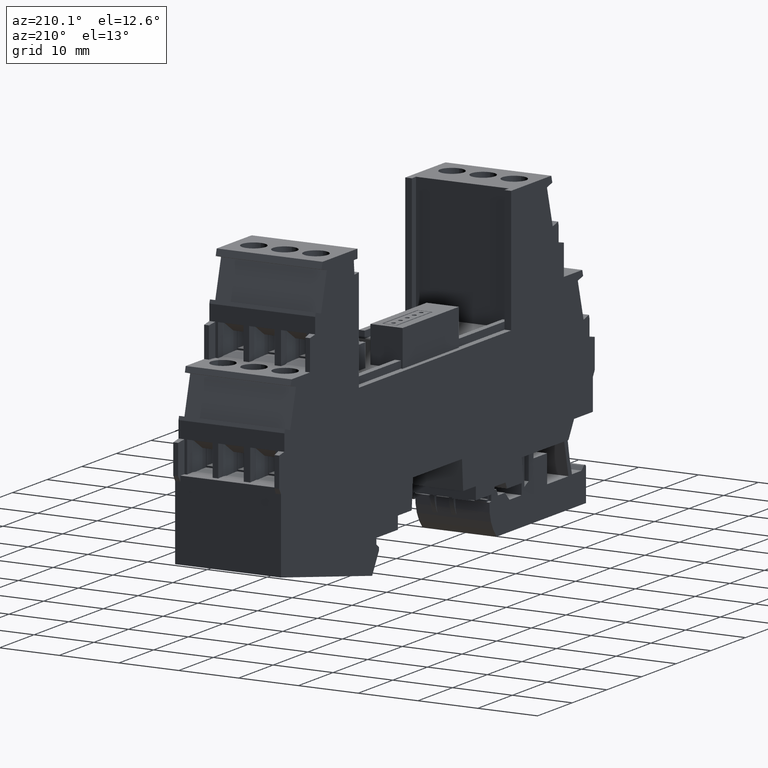
[diagram: clean part render]
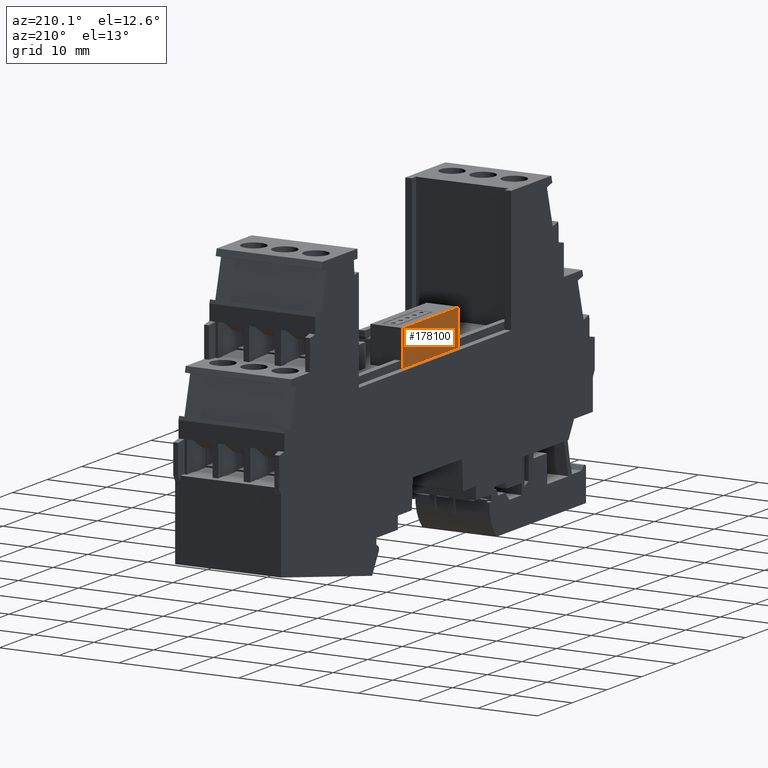
[diagram: same view with one face highlighted and labeled with its STEP entity id]
A machine part, auxiliary view. The second image highlights one B-rep face of the part: STEP entity #178100.
In plain terms, the highlighted planar face has unit normal (-1, -0, -0).
Its self-contained STEP definition (entity closure, byte-faithful):
#168240=CARTESIAN_POINT('',(110.39006479045,57.2248719514523,
-17.8081203038782));
#168250=VERTEX_POINT('',#168240);
#168280=CARTESIAN_POINT('',(171.854165366724,57.2248719514365,
-17.8081203038863));
#168290=DIRECTION('',(-1.,2.56261314536478E-13,1.31820482407676E-13));
#168300=VECTOR('',#168290,1.);
#168310=LINE('',#168280,#168300);
#168320=CARTESIAN_POINT('',(126.629778979983,57.2248719514481,
-17.8081203038803));
#168330=VERTEX_POINT('',#168320);
#168340=EDGE_CURVE('',#168330,#168250,#168310,.T.);
#177800=CARTESIAN_POINT('',(110.39006479045,51.1748719511172,
-17.8081203036122));
#177810=DIRECTION('',(-1.31820482418944E-13,-4.39608926050624E-11,-1.));
#177820=DIRECTION('',(1.,-2.48441521817082E-16,-1.31820482418933E-13));
#177830=AXIS2_PLACEMENT_3D('',#177800,#177810,#177820);
#177840=PLANE('',#177830);
#177850=CARTESIAN_POINT('',(126.629778979983,30.0424286100188,
-17.8081203026854));
#177860=DIRECTION('',(2.48441516024425E-16,1.,-4.39608926050624E-11));
#177870=VECTOR('',#177860,1.);
#177880=LINE('',#177850,#177870);
#177890=CARTESIAN_POINT('',(126.629778979983,51.1748719511172,
-17.8081203036144));
#177900=VERTEX_POINT('',#177890);
#177910=EDGE_CURVE('',#177900,#168330,#177880,.T.);
#177920=ORIENTED_EDGE('',*,*,#177910,.F.);
#177930=ORIENTED_EDGE('',*,*,#168340,.F.);
#177940=CARTESIAN_POINT('',(110.39006479045,30.0424286100188,
-17.8081203026832));
#177950=DIRECTION('',(2.48441516024425E-16,1.,-4.39608926050624E-11));
#177960=VECTOR('',#177950,1.);
#177970=LINE('',#177940,#177960);
#177980=CARTESIAN_POINT('',(110.39006479045,51.1748719511172,
-17.8081203036122));
#177990=VERTEX_POINT('',#177980);
#178000=EDGE_CURVE('',#177990,#168250,#177970,.T.);
#178010=ORIENTED_EDGE('',*,*,#178000,.T.);
#178020=CARTESIAN_POINT('',(171.854165366724,51.1748719511172,
-17.8081203036203));
#178030=DIRECTION('',(1.,-2.48441521814203E-16,-1.31820482418933E-13));
#178040=VECTOR('',#178030,1.);
#178050=LINE('',#178020,#178040);
#178060=EDGE_CURVE('',#177990,#177900,#178050,.T.);
#178070=ORIENTED_EDGE('',*,*,#178060,.F.);
#178080=EDGE_LOOP('',(#178070,#178010,#177930,#177920));
#178090=FACE_OUTER_BOUND('',#178080,.T.);
#178100=ADVANCED_FACE('',(#178090),#177840,.T.);